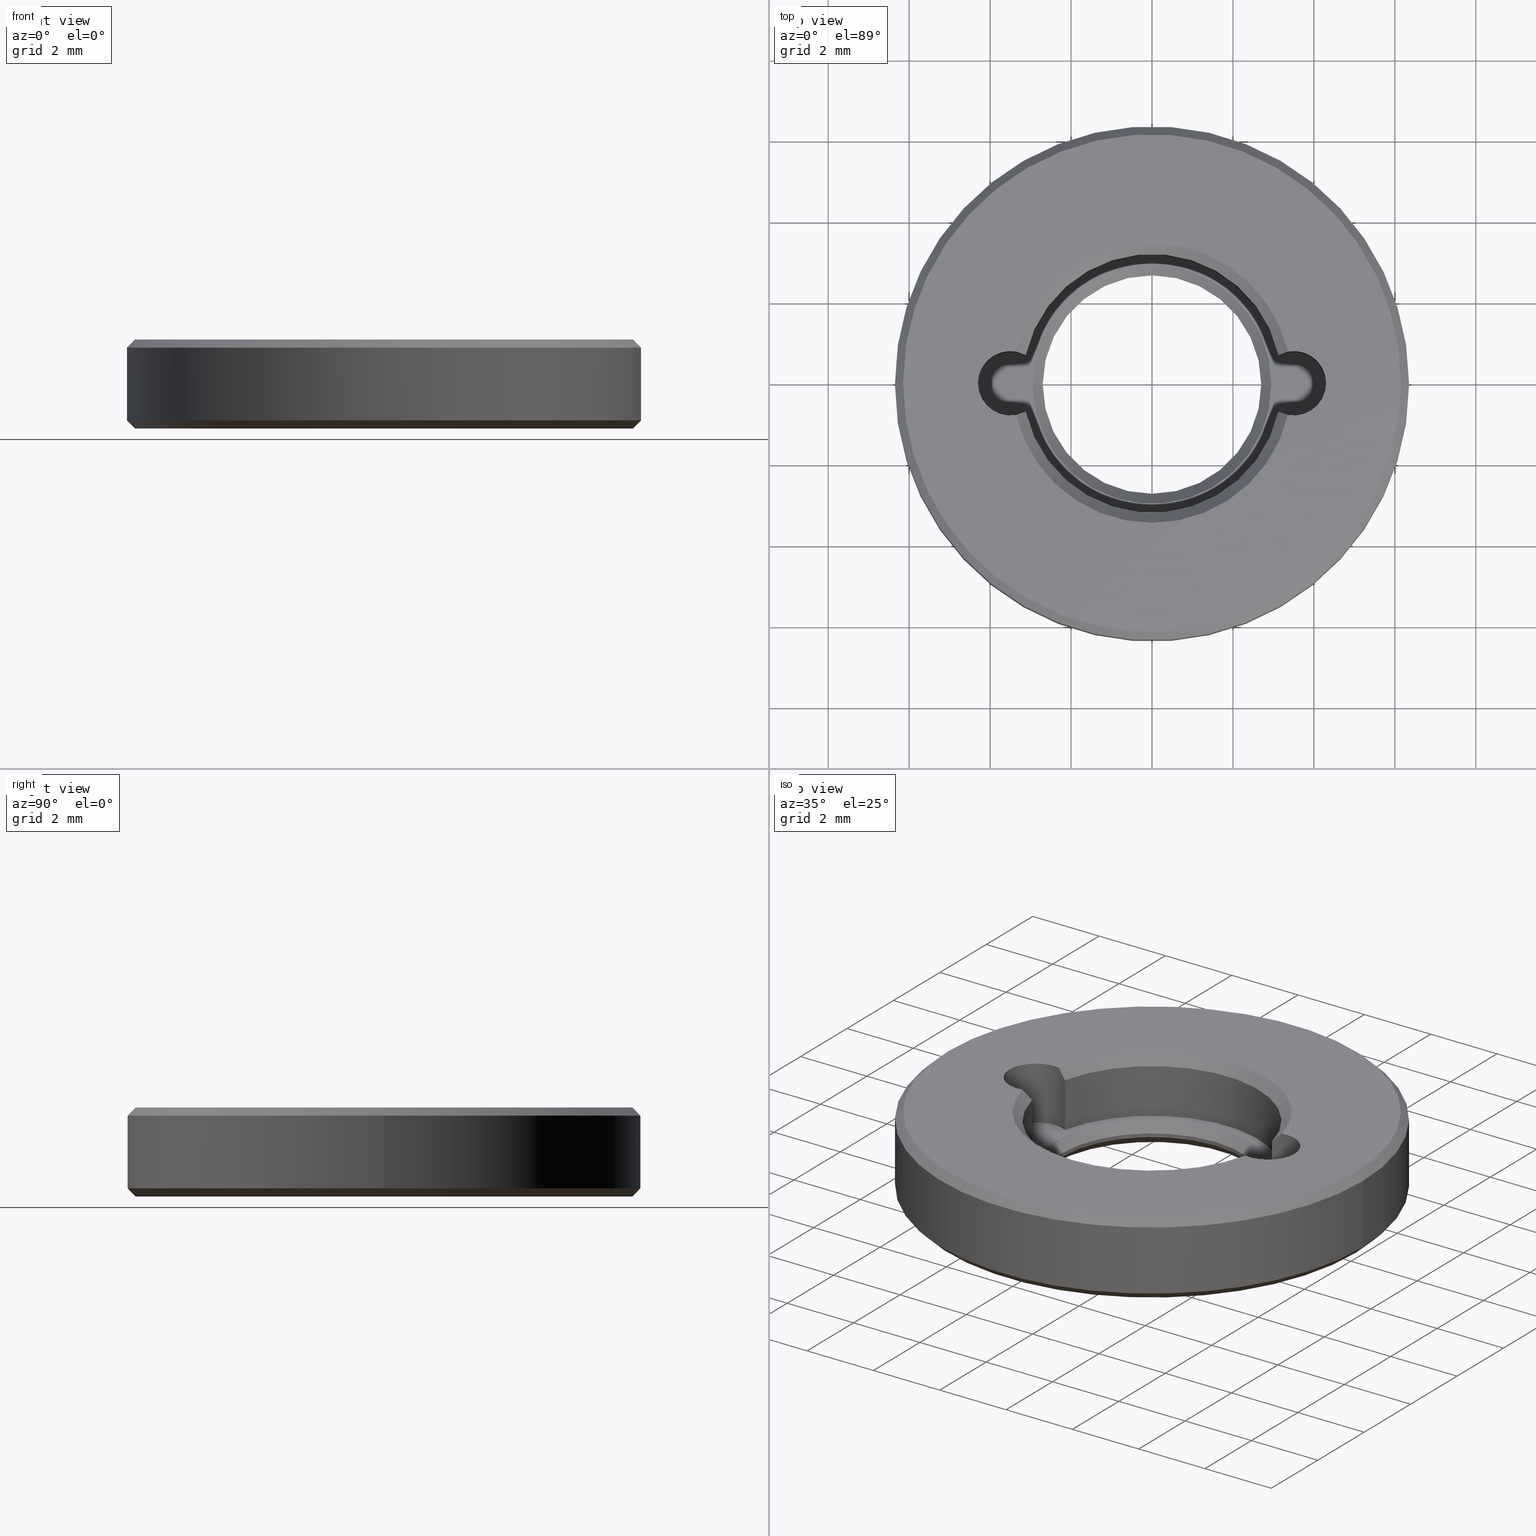
[diagram: canonical four-view strip — front | top / right | iso, engineering-drawing reading convention]
A machine part, canonical four-view strip (front | top / right | iso — engineering-drawing reading convention). The complete STEP part file that produces these views, byte-faithful:
ISO-10303-21;
HEADER;
FILE_DESCRIPTION (( 'STEP AP203' ),
    '1' );
FILE_NAME ('1.6.4.7-ZSJ-05-6.35.STEP',
    '2024-04-15T05:49:39',
    ( '' ),
    ( '' ),
    'SwSTEP 2.0',
    'SolidWorks 2021',
    '' );
FILE_SCHEMA (( 'CONFIG_CONTROL_DESIGN' ));
ENDSEC;

DATA;
#1 = LINE ( 'NONE', #384, #110 ) ;
#2 = CARTESIAN_POINT ( 'NONE',  ( 0.000000000000000000, 0.000000000000000000, 0.2500000000000002220 ) ) ;
#3 = EDGE_CURVE ( 'NONE', #61, #631, #259, .T. ) ;
#4 = DATE_AND_TIME ( #54, #622 ) ;
#5 = DIRECTION ( 'NONE',  ( -0.000000000000000000, -0.000000000000000000, 1.000000000000000000 ) ) ;
#6 = LOCAL_TIME ( 13, 49, 39.00000000000000000, #130 ) ;
#7 = ORIENTED_EDGE ( 'NONE', *, *, #155, .T. ) ;
#8 = DATE_AND_TIME ( #675, #6 ) ;
#9 = DIRECTION ( 'NONE',  ( 0.000000000000000000, 0.000000000000000000, 1.000000000000000000 ) ) ;
#10 = CYLINDRICAL_SURFACE ( 'NONE', #87, 2.700000000000000178 ) ;
#11 = APPROVAL_DATE_TIME ( #8, #230 ) ;
#12 = ORIENTED_EDGE ( 'NONE', *, *, #251, .T. ) ;
#13 = CARTESIAN_POINT ( 'NONE',  ( 0.000000000000000000, 0.000000000000000000, 0.3500000000000033085 ) ) ;
#14 = AXIS2_PLACEMENT_3D ( 'NONE', #295, #337, #555 ) ;
#15 = EDGE_CURVE ( 'NONE', #631, #602, #674, .T. ) ;
#16 = ORIENTED_EDGE ( 'NONE', *, *, #401, .F. ) ;
#17 = AXIS2_PLACEMENT_3D ( 'NONE', #395, #174, #76 ) ;
#18 = VECTOR ( 'NONE', #400, 1000.000000000000000 ) ;
#19 = EDGE_LOOP ( 'NONE', ( #374, #69 ) ) ;
#20 = DIRECTION ( 'NONE',  ( 0.000000000000000000, 0.000000000000000000, 1.000000000000000000 ) ) ;
#21 = ORIENTED_EDGE ( 'NONE', *, *, #630, .T. ) ;
#22 = DIRECTION ( 'NONE',  ( 1.000000000000000000, 0.000000000000000000, 0.000000000000000000 ) ) ;
#23 = EDGE_CURVE ( 'NONE', #570, #412, #679, .T. ) ;
#24 = ORIENTED_EDGE ( 'NONE', *, *, #545, .F. ) ;
#25 = CARTESIAN_POINT ( 'NONE',  ( 0.000000000000000000, 0.000000000000000000, 0.000000000000000000 ) ) ;
#26 = ORIENTED_EDGE ( 'NONE', *, *, #573, .F. ) ;
#27 = AXIS2_PLACEMENT_3D ( 'NONE', #255, #640, #263 ) ;
#28 = AXIS2_PLACEMENT_3D ( 'NONE', #414, #628, #138 ) ;
#29 = EDGE_CURVE ( 'NONE', #665, #344, #528, .T. ) ;
#30 = ORIENTED_EDGE ( 'NONE', *, *, #471, .F. ) ;
#31 = FACE_OUTER_BOUND ( 'NONE', #669, .T. ) ;
#32 = CARTESIAN_POINT ( 'NONE',  ( 3.500000000000000000, 4.286263797015736595E-16, 0.6000000000000003109 ) ) ;
#33 = VERTEX_POINT ( 'NONE', #567 ) ;
#34 = FACE_OUTER_BOUND ( 'NONE', #176, .T. ) ;
#35 = DIRECTION ( 'NONE',  ( -1.000000000000000000, 0.000000000000000000, 0.000000000000000000 ) ) ;
#36 = ORIENTED_EDGE ( 'NONE', *, *, #195, .T. ) ;
#37 = CARTESIAN_POINT ( 'NONE',  ( 2.700000000000000178, 0.000000000000000000, 0.2500000000000002220 ) ) ;
#38 = CARTESIAN_POINT ( 'NONE',  ( -3.358928571428574816, -0.7874635560080348595, 2.200000000000000178 ) ) ;
#39 = EDGE_CURVE ( 'NONE', #627, #196, #271, .T. ) ;
#40 = EDGE_LOOP ( 'NONE', ( #510, #140, #118, #426 ) ) ;
#41 = DIRECTION ( 'NONE',  ( -0.000000000000000000, -0.000000000000000000, -1.000000000000000000 ) ) ;
#42 = DIRECTION ( 'NONE',  ( 1.000000000000000000, 0.000000000000000000, 0.000000000000000000 ) ) ;
#43 = CC_DESIGN_PERSON_AND_ORGANIZATION_ASSIGNMENT ( #44, #386, ( #582 ) ) ;
#44 = PERSON_AND_ORGANIZATION ( #498, #248 ) ;
#45 = CARTESIAN_POINT ( 'NONE',  ( -3.121428571428571441, -0.7047578828714082810, 0.6000000000000003109 ) ) ;
#46 = EDGE_CURVE ( 'NONE', #631, #61, #321, .T. ) ;
#47 = DIRECTION ( 'NONE',  ( 1.000000000000000000, 0.000000000000000000, 0.000000000000000000 ) ) ;
#48 = APPLICATION_CONTEXT ( 'configuration controlled 3d designs of mechanical parts and assemblies' ) ;
#49 = AXIS2_PLACEMENT_3D ( 'NONE', #591, #439, #47 ) ;
#50 = DIRECTION ( 'NONE',  ( 0.7071067811865490160, 8.659560562354950115E-17, -0.7071067811865459074 ) ) ;
#51 = APPROVAL_ROLE ( '' ) ;
#52 = DIRECTION ( 'NONE',  ( 1.000000000000000000, 0.000000000000000000, -0.000000000000000000 ) ) ;
#53 = ADVANCED_FACE ( 'NONE', ( #91 ), #302, .T. ) ;
#54 = CALENDAR_DATE ( 2024, 15, 4 ) ;
#55 = DIRECTION ( 'NONE',  ( 1.000000000000000000, 0.000000000000000000, -0.000000000000000000 ) ) ;
#56 = AXIS2_PLACEMENT_3D ( 'NONE', #252, #422, #467 ) ;
#57 = ORIENTED_EDGE ( 'NONE', *, *, #683, .F. ) ;
#58 = DIRECTION ( 'NONE',  ( 1.000000000000000000, 0.000000000000000000, 0.000000000000000000 ) ) ;
#59 = AXIS2_PLACEMENT_3D ( 'NONE', #2, #220, #320 ) ;
#60 = VECTOR ( 'NONE', #522, 1000.000000000000000 ) ;
#61 = VERTEX_POINT ( 'NONE', #258 ) ;
#62 = ORIENTED_EDGE ( 'NONE', *, *, #704, .T. ) ;
#63 = DIRECTION ( 'NONE',  ( 0.000000000000000000, 0.000000000000000000, 1.000000000000000000 ) ) ;
#64 = CARTESIAN_POINT ( 'NONE',  ( 3.276081714236735998, -0.7726218221810703390, 2.115952463718425491 ) ) ;
#65 = EDGE_CURVE ( 'NONE', #186, #665, #418, .T. ) ;
#66 = CARTESIAN_POINT ( 'NONE',  ( 0.000000000000000000, 0.000000000000000000, 0.1999999999999987899 ) ) ;
#67 = APPROVAL_STATUS ( 'not_yet_approved' ) ;
#68 = PRODUCT_DEFINITION ( 'δ֪', '', #353, #325 ) ;
#69 = ORIENTED_EDGE ( 'NONE', *, *, #545, .T. ) ;
#70 = DIRECTION ( 'NONE',  ( -0.000000000000000000, -0.000000000000000000, -1.000000000000000000 ) ) ;
#71 = CIRCLE ( 'NONE', #407, 2.949999999999997957 ) ;
#72 = ORIENTED_EDGE ( 'NONE', *, *, #94, .T. ) ;
#73 = CIRCLE ( 'NONE', #121, 3.200000000000000178 ) ;
#74 = B_SPLINE_CURVE_WITH_KNOTS ( 'NONE', 3,
 ( #38, #430, #572, #99 ),
 .UNSPECIFIED., .F., .F.,
 ( 4, 4 ),
 ( 2.812734725205287172E-07, 0.0003548887725015042603 ),
 .UNSPECIFIED. ) ;
#75 = ORIENTED_EDGE ( 'NONE', *, *, #499, .T. ) ;
#76 = DIRECTION ( 'NONE',  ( 1.000000000000000000, 0.000000000000000000, 0.000000000000000000 ) ) ;
#77 = DIRECTION ( 'NONE',  ( 1.000000000000000000, 0.000000000000000000, 0.000000000000000000 ) ) ;
#78 = EDGE_CURVE ( 'NONE', #186, #521, #288, .T. ) ;
#79 = ORIENTED_EDGE ( 'NONE', *, *, #573, .T. ) ;
#80 = CYLINDRICAL_SURFACE ( 'NONE', #247, 0.8000000000000008216 ) ;
#81 = DIRECTION ( 'NONE',  ( 1.000000000000000000, 0.000000000000000000, 0.000000000000000000 ) ) ;
#82 = ADVANCED_FACE ( 'NONE', ( #633, #307 ), #317, .T. ) ;
#83 = ORIENTED_EDGE ( 'NONE', *, *, #23, .T. ) ;
#84 = CARTESIAN_POINT ( 'NONE',  ( 0.000000000000000000, 0.000000000000000000, 0.6000000000000000888 ) ) ;
#85 = CARTESIAN_POINT ( 'NONE',  ( 2.700000000000000178, 0.000000000000000000, 0.3500000000000033085 ) ) ;
#86 = AXIS2_PLACEMENT_3D ( 'NONE', #111, #225, #58 ) ;
#87 = AXIS2_PLACEMENT_3D ( 'NONE', #286, #677, #240 ) ;
#88 = AXIS2_PLACEMENT_3D ( 'NONE', #197, #644, #301 ) ;
#89 = ORIENTED_EDGE ( 'NONE', *, *, #410, .T. ) ;
#90 = FACE_OUTER_BOUND ( 'NONE', #102, .T. ) ;
#91 = FACE_OUTER_BOUND ( 'NONE', #611, .T. ) ;
#92 = EDGE_LOOP ( 'NONE', ( #664, #119, #406, #181 ) ) ;
#93 = CARTESIAN_POINT ( 'NONE',  ( 3.500000000000000000, 4.286263797015736595E-16, -1.662741699796954853 ) ) ;
#94 = EDGE_CURVE ( 'NONE', #534, #672, #74, .T. ) ;
#95 = DIRECTION ( 'NONE',  ( 1.000000000000000000, 0.000000000000000000, 0.000000000000000000 ) ) ;
#96 = VERTEX_POINT ( 'NONE', #198 ) ;
#97 = CARTESIAN_POINT ( 'NONE',  ( 3.121428571428571441, -0.7047578828714075039, 1.400000000000000133 ) ) ;
#98 = CC_DESIGN_PERSON_AND_ORGANIZATION_ASSIGNMENT ( #209, #223, ( #353 ) ) ;
#99 = CARTESIAN_POINT ( 'NONE',  ( -3.121428571428571441, -0.7047578828714082810, 1.949999999999999956 ) ) ;
#100 = AXIS2_PLACEMENT_3D ( 'NONE', #264, #684, #415 ) ;
#101 = AXIS2_PLACEMENT_3D ( 'NONE', #25, #686, #689 ) ;
#102 = EDGE_LOOP ( 'NONE', ( #16, #508, #275, #124 ) ) ;
#103 = APPROVAL_DATE_TIME ( #4, #162 ) ;
#104 = DIRECTION ( 'NONE',  ( 1.000000000000000000, 0.000000000000000000, 0.000000000000000000 ) ) ;
#105 = ADVANCED_FACE ( 'NONE', ( #204 ), #378, .F. ) ;
#106 = DIRECTION ( 'NONE',  ( 0.000000000000000000, 0.000000000000000000, 1.000000000000000000 ) ) ;
#107 = PERSON_AND_ORGANIZATION_ROLE ( 'classification_officer' ) ;
#108 = DIRECTION ( 'NONE',  ( 0.000000000000000000, 0.000000000000000000, 1.000000000000000000 ) ) ;
#109 = DIRECTION ( 'NONE',  ( 1.000000000000000000, 0.000000000000000000, 0.000000000000000000 ) ) ;
#110 = VECTOR ( 'NONE', #537, 1000.000000000000000 ) ;
#111 = CARTESIAN_POINT ( 'NONE',  ( 0.000000000000000000, 0.000000000000000000, 1.949999999999999956 ) ) ;
#112 = AXIS2_PLACEMENT_3D ( 'NONE', #84, #421, #519 ) ;
#113 = DATE_AND_TIME ( #490, #380 ) ;
#114 = ADVANCED_FACE ( 'NONE', ( #313 ), #475, .F. ) ;
#115 = CARTESIAN_POINT ( 'NONE',  ( 3.500000000000000000, 4.286263797015736595E-16, -1.662741699796954853 ) ) ;
#116 = EDGE_LOOP ( 'NONE', ( #253, #131 ) ) ;
#117 = DIRECTION ( 'NONE',  ( 0.000000000000000000, 0.000000000000000000, -1.000000000000000000 ) ) ;
#118 = ORIENTED_EDGE ( 'NONE', *, *, #145, .T. ) ;
#119 = ORIENTED_EDGE ( 'NONE', *, *, #15, .T. ) ;
#120 = DIRECTION ( 'NONE',  ( 0.000000000000000000, 0.000000000000000000, 1.000000000000000000 ) ) ;
#121 = AXIS2_PLACEMENT_3D ( 'NONE', #356, #20, #452 ) ;
#122 = CARTESIAN_POINT ( 'NONE',  ( -6.349999999999999645, 7.776507174585692163E-16, 0.1999999999999987899 ) ) ;
#123 = EDGE_CURVE ( 'NONE', #192, #96, #620, .T. ) ;
#124 = ORIENTED_EDGE ( 'NONE', *, *, #608, .T. ) ;
#125 = CARTESIAN_POINT ( 'NONE',  ( 0.000000000000000000, 0.000000000000000000, 2.200000000000000178 ) ) ;
#126 = ORIENTED_EDGE ( 'NONE', *, *, #513, .F. ) ;
#127 = ORIENTED_EDGE ( 'NONE', *, *, #3, .T. ) ;
#128 = DIRECTION ( 'NONE',  ( 1.000000000000000000, 0.000000000000000000, 0.000000000000000000 ) ) ;
#129 = ORIENTED_EDGE ( 'NONE', *, *, #29, .F. ) ;
#130 = COORDINATED_UNIVERSAL_TIME_OFFSET ( 8, 0, .AHEAD. ) ;
#131 = ORIENTED_EDGE ( 'NONE', *, *, #218, .T. ) ;
#132 = DIRECTION ( 'NONE',  ( -0.000000000000000000, -0.000000000000000000, 1.000000000000000000 ) ) ;
#133 = CIRCLE ( 'NONE', #634, 3.450000000000003286 ) ;
#134 = ORIENTED_EDGE ( 'NONE', *, *, #251, .F. ) ;
#135 = EDGE_LOOP ( 'NONE', ( #300, #79, #465, #334 ) ) ;
#136 = CARTESIAN_POINT ( 'NONE',  ( 0.000000000000000000, 0.000000000000000000, 0.1999999999999987899 ) ) ;
#137 = ORIENTED_EDGE ( 'NONE', *, *, #372, .F. ) ;
#138 = DIRECTION ( 'NONE',  ( 1.000000000000000000, 0.000000000000000000, 0.000000000000000000 ) ) ;
#139 = LINE ( 'NONE', #273, #574 ) ;
#140 = ORIENTED_EDGE ( 'NONE', *, *, #3, .F. ) ;
#141 = DIRECTION ( 'NONE',  ( -0.000000000000000000, -0.000000000000000000, 1.000000000000000000 ) ) ;
#142 = DIRECTION ( 'NONE',  ( -0.000000000000000000, -0.000000000000000000, -1.000000000000000000 ) ) ;
#143 = CIRCLE ( 'NONE', #304, 6.349999999999999645 ) ;
#144 = AXIS2_PLACEMENT_3D ( 'NONE', #481, #700, #435 ) ;
#145 = EDGE_CURVE ( 'NONE', #61, #408, #523, .T. ) ;
#146 = CONICAL_SURFACE ( 'NONE', #101, 2.949999999999999289, 0.7853981633974466137 ) ;
#147 = CC_DESIGN_APPROVAL ( #230, ( #201 ) ) ;
#148 = ORIENTED_EDGE ( 'NONE', *, *, #513, .T. ) ;
#149 = DIRECTION ( 'NONE',  ( -1.000000000000000000, 0.000000000000000000, 0.000000000000000000 ) ) ;
#150 = DIRECTION ( 'NONE',  ( 1.000000000000000000, 0.000000000000000000, 0.000000000000000000 ) ) ;
#151 = ORIENTED_EDGE ( 'NONE', *, *, #655, .F. ) ;
#152 = LINE ( 'NONE', #469, #158 ) ;
#153 = DIRECTION ( 'NONE',  ( 0.000000000000000000, 0.000000000000000000, 1.000000000000000000 ) ) ;
#154 = FACE_OUTER_BOUND ( 'NONE', #453, .T. ) ;
#155 = EDGE_CURVE ( 'NONE', #468, #404, #314, .T. ) ;
#156 = DIRECTION ( 'NONE',  ( 0.000000000000000000, 0.000000000000000000, 1.000000000000000000 ) ) ;
#157 = CONICAL_SURFACE ( 'NONE', #635, 2.700000000000000178, 0.7853981633974500554 ) ;
#158 = VECTOR ( 'NONE', #580, 1000.000000000000000 ) ;
#159 = COORDINATED_UNIVERSAL_TIME_OFFSET ( 8, 0, .AHEAD. ) ;
#160 = APPROVAL_PERSON_ORGANIZATION ( #324, #566, #51 ) ;
#161 = DIRECTION ( 'NONE',  ( -0.000000000000000000, -0.000000000000000000, 1.000000000000000000 ) ) ;
#162 = APPROVAL ( #600, 'δָ��' ) ;
#163 = SECURITY_CLASSIFICATION_LEVEL ( 'unclassified' ) ;
#164 = LINE ( 'NONE', #536, #188 ) ;
#165 = DIRECTION ( 'NONE',  ( -0.7071067811865487940, 8.659560562354950115E-17, 0.7071067811865463515 ) ) ;
#166 = AXIS2_PLACEMENT_3D ( 'NONE', #530, #142, #645 ) ;
#167 = EDGE_CURVE ( 'NONE', #521, #96, #222, .T. ) ;
#168 = PERSON_AND_ORGANIZATION ( #498, #248 ) ;
#169 = AXIS2_PLACEMENT_3D ( 'NONE', #309, #427, #149 ) ;
#170 = LINE ( 'NONE', #215, #540 ) ;
#171 = ORIENTED_EDGE ( 'NONE', *, *, #434, .T. ) ;
#172 = CARTESIAN_POINT ( 'NONE',  ( -2.700000000000000178, 3.306546357697853733E-16, 0.3500000000000033085 ) ) ;
#173 = VERTEX_POINT ( 'NONE', #85 ) ;
#174 = DIRECTION ( 'NONE',  ( 0.000000000000000000, 0.000000000000000000, 1.000000000000000000 ) ) ;
#175 = EDGE_CURVE ( 'NONE', #177, #33, #71, .T. ) ;
#176 = EDGE_LOOP ( 'NONE', ( #456, #281, #643, #233 ) ) ;
#177 = VERTEX_POINT ( 'NONE', #310 ) ;
#178 = DIRECTION ( 'NONE',  ( -0.000000000000000000, -0.000000000000000000, -1.000000000000000000 ) ) ;
#179 = ADVANCED_FACE ( 'NONE', ( #478 ), #157, .F. ) ;
#180 = CC_DESIGN_APPROVAL ( #162, ( #353 ) ) ;
#181 = ORIENTED_EDGE ( 'NONE', *, *, #145, .F. ) ;
#182 = CARTESIAN_POINT ( 'NONE',  ( -2.949999999999999289, 0.000000000000000000, 0.000000000000000000 ) ) ;
#183 = EDGE_CURVE ( 'NONE', #527, #404, #133, .T. ) ;
#184 = CARTESIAN_POINT ( 'NONE',  ( 0.000000000000000000, 0.000000000000000000, 2.200000000000000178 ) ) ;
#185 = CARTESIAN_POINT ( 'NONE',  ( 0.000000000000000000, 0.000000000000000000, 0.000000000000000000 ) ) ;
#186 = VERTEX_POINT ( 'NONE', #533 ) ;
#187 = CARTESIAN_POINT ( 'NONE',  ( 4.300000000000000711, 4.286263797015736595E-16, 2.200000000000000178 ) ) ;
#188 = VECTOR ( 'NONE', #165, 1000.000000000000000 ) ;
#189 = ORIENTED_EDGE ( 'NONE', *, *, #531, .T. ) ;
#190 = CARTESIAN_POINT ( 'NONE',  ( -6.150000000000000355, 7.654042494670957606E-16, 0.000000000000000000 ) ) ;
#191 = DIRECTION ( 'NONE',  ( 1.000000000000000000, 0.000000000000000000, -0.000000000000000000 ) ) ;
#192 = VERTEX_POINT ( 'NONE', #45 ) ;
#193 = DIRECTION ( 'NONE',  ( 0.7071067811865463515, 8.659560562354919300E-17, -0.7071067811865487940 ) ) ;
#194 = DIRECTION ( 'NONE',  ( 0.000000000000000000, 0.000000000000000000, 1.000000000000000000 ) ) ;
#195 = EDGE_CURVE ( 'NONE', #605, #657, #348, .T. ) ;
#196 = VERTEX_POINT ( 'NONE', #629 ) ;
#197 = CARTESIAN_POINT ( 'NONE',  ( 0.000000000000000000, 0.000000000000000000, 2.200000000000000178 ) ) ;
#198 = CARTESIAN_POINT ( 'NONE',  ( 3.121428571428571441, -0.7047578828714075039, 0.6000000000000003109 ) ) ;
#199 = AXIS2_PLACEMENT_3D ( 'NONE', #607, #241, #77 ) ;
#200 =( GEOMETRIC_REPRESENTATION_CONTEXT ( 3 ) GLOBAL_UNCERTAINTY_ASSIGNED_CONTEXT ( ( #538 ) ) GLOBAL_UNIT_ASSIGNED_CONTEXT ( ( #381, #219, #653 ) ) REPRESENTATION_CONTEXT ( 'NONE', 'WORKASPACE' ) );
#201 = SECURITY_CLASSIFICATION ( '', '', #163 ) ;
#202 = EDGE_LOOP ( 'NONE', ( #518, #284, #624, #129 ) ) ;
#203 = CARTESIAN_POINT ( 'NONE',  ( 3.121428571428571441, 0.7047578828714082810, 1.949999999999999956 ) ) ;
#204 = FACE_OUTER_BOUND ( 'NONE', #637, .T. ) ;
#205 = EDGE_CURVE ( 'NONE', #432, #648, #139, .T. ) ;
#206 = LINE ( 'NONE', #312, #553 ) ;
#207 = CARTESIAN_POINT ( 'NONE',  ( 0.000000000000000000, 0.000000000000000000, 2.200000000000000178 ) ) ;
#208 = EDGE_LOOP ( 'NONE', ( #676, #370, #151, #615, #293 ) ) ;
#209 = PERSON_AND_ORGANIZATION ( #498, #248 ) ;
#210 = PRODUCT_RELATED_PRODUCT_CATEGORY ( 'detail', '', ( #582 ) ) ;
#211 = CARTESIAN_POINT ( 'NONE',  ( -3.121428571428571441, 0.7047578828714076149, 1.949999999999999956 ) ) ;
#212 = VECTOR ( 'NONE', #649, 1000.000000000000000 ) ;
#213 = CIRCLE ( 'NONE', #59, 2.700000000000000178 ) ;
#214 = CARTESIAN_POINT ( 'NONE',  ( -3.500000000000000000, -4.286263797015736595E-16, 2.200000000000000178 ) ) ;
#215 = CARTESIAN_POINT ( 'NONE',  ( -2.700000000000000178, 3.306546357697853733E-16, 0.000000000000000000 ) ) ;
#216 = CARTESIAN_POINT ( 'NONE',  ( 3.121428571428571441, 0.7047578828714082810, 1.949999999999999956 ) ) ;
#217 = CARTESIAN_POINT ( 'NONE',  ( 0.000000000000000000, 0.000000000000000000, 0.1999999999999987899 ) ) ;
#218 = EDGE_CURVE ( 'NONE', #33, #177, #504, .T. ) ;
#219 =( NAMED_UNIT ( * ) PLANE_ANGLE_UNIT ( ) SI_UNIT ( $, .RADIAN. ) );
#220 = DIRECTION ( 'NONE',  ( -0.000000000000000000, -0.000000000000000000, -1.000000000000000000 ) ) ;
#221 = ADVANCED_FACE ( 'NONE', ( #661 ), #517, .T. ) ;
#222 = CIRCLE ( 'NONE', #27, 0.8000000000000008216 ) ;
#223 = PERSON_AND_ORGANIZATION_ROLE ( 'creator' ) ;
#224 = CIRCLE ( 'NONE', #621, 6.149999999999999467 ) ;
#225 = DIRECTION ( 'NONE',  ( 0.000000000000000000, 0.000000000000000000, 1.000000000000000000 ) ) ;
#226 = ORIENTED_EDGE ( 'NONE', *, *, #696, .T. ) ;
#227 = DATE_TIME_ROLE ( 'classification_date' ) ;
#228 = EDGE_CURVE ( 'NONE', #657, #173, #326, .T. ) ;
#229 = CARTESIAN_POINT ( 'NONE',  ( -3.358928571428574816, -0.7874635560080348595, 2.200000000000000178 ) ) ;
#230 = APPROVAL ( #67, 'δָ��' ) ;
#231 = ORIENTED_EDGE ( 'NONE', *, *, #65, .F. ) ;
#232 = CYLINDRICAL_SURFACE ( 'NONE', #279, 6.349999999999999645 ) ;
#233 = ORIENTED_EDGE ( 'NONE', *, *, #228, .F. ) ;
#234 = DIRECTION ( 'NONE',  ( 1.000000000000000000, 0.000000000000000000, 0.000000000000000000 ) ) ;
#235 = CIRCLE ( 'NONE', #692, 0.8000000000000008216 ) ;
#236 = VECTOR ( 'NONE', #584, 1000.000000000000000 ) ;
#237 = ORIENTED_EDGE ( 'NONE', *, *, #343, .F. ) ;
#238 = APPROVAL_PERSON_ORGANIZATION ( #243, #230, #501 ) ;
#239 = ORIENTED_EDGE ( 'NONE', *, *, #376, .F. ) ;
#240 = DIRECTION ( 'NONE',  ( 1.000000000000000000, 0.000000000000000000, 0.000000000000000000 ) ) ;
#241 = DIRECTION ( 'NONE',  ( -0.000000000000000000, -0.000000000000000000, -1.000000000000000000 ) ) ;
#242 = EDGE_CURVE ( 'NONE', #344, #527, #431, .T. ) ;
#243 = PERSON_AND_ORGANIZATION ( #498, #248 ) ;
#244 = CARTESIAN_POINT ( 'NONE',  ( 0.000000000000000000, 0.000000000000000000, 0.3500000000000033085 ) ) ;
#245 = ORIENTED_EDGE ( 'NONE', *, *, #205, .T. ) ;
#246 = LINE ( 'NONE', #97, #542 ) ;
#247 = AXIS2_PLACEMENT_3D ( 'NONE', #93, #141, #297 ) ;
#248 = ORGANIZATION ( 'δָ��', 'δָ��', '' ) ;
#249 = ORIENTED_EDGE ( 'NONE', *, *, #123, .T. ) ;
#250 = CARTESIAN_POINT ( 'NONE',  ( -2.700000000000000178, 3.306546357697853733E-16, 0.2500000000000002220 ) ) ;
#251 = EDGE_CURVE ( 'NONE', #339, #33, #164, .T. ) ;
#252 = CARTESIAN_POINT ( 'NONE',  ( 0.000000000000000000, 0.000000000000000000, 0.6000000000000000888 ) ) ;
#253 = ORIENTED_EDGE ( 'NONE', *, *, #175, .T. ) ;
#254 = CYLINDRICAL_SURFACE ( 'NONE', #423, 2.700000000000000178 ) ;
#255 = CARTESIAN_POINT ( 'NONE',  ( 3.500000000000000000, 4.286263797015736595E-16, 0.6000000000000003109 ) ) ;
#256 = ORIENTED_EDGE ( 'NONE', *, *, #195, .F. ) ;
#257 = CARTESIAN_POINT ( 'NONE',  ( 0.000000000000000000, 0.000000000000000000, 0.000000000000000000 ) ) ;
#258 = CARTESIAN_POINT ( 'NONE',  ( 6.150000000000000355, 0.000000000000000000, 0.000000000000000000 ) ) ;
#259 = CIRCLE ( 'NONE', #199, 6.150000000000000355 ) ;
#260 = EDGE_CURVE ( 'NONE', #454, #602, #391, .T. ) ;
#261 = ORIENTED_EDGE ( 'NONE', *, *, #94, .F. ) ;
#262 = DIRECTION ( 'NONE',  ( -1.000000000000000000, 0.000000000000000000, 0.000000000000000000 ) ) ;
#263 = DIRECTION ( 'NONE',  ( 1.000000000000000000, 0.000000000000000000, 0.000000000000000000 ) ) ;
#264 = CARTESIAN_POINT ( 'NONE',  ( 0.000000000000000000, 0.000000000000000000, 0.2500000000000002220 ) ) ;
#265 = PRODUCT_DEFINITION_SHAPE ( 'NONE', 'NONE',  #68 ) ;
#266 = PERSON_AND_ORGANIZATION_ROLE ( 'creator' ) ;
#267 = DIRECTION ( 'NONE',  ( -0.000000000000000000, -0.000000000000000000, 1.000000000000000000 ) ) ;
#268 = CIRCLE ( 'NONE', #49, 6.349999999999999645 ) ;
#269 = ADVANCED_FACE ( 'NONE', ( #603 ), #397, .F. ) ;
#270 = CARTESIAN_POINT ( 'NONE',  ( 0.000000000000000000, 0.000000000000000000, 0.6000000000000000888 ) ) ;
#271 = B_SPLINE_CURVE_WITH_KNOTS ( 'NONE', 3,
 ( #516, #619, #64, #512 ),
 .UNSPECIFIED., .F., .F.,
 ( 4, 4 ),
 ( 2.863821279594674527E-07, 0.0003548938811569430979 ),
 .UNSPECIFIED. ) ;
#272 = APPROVAL_DATE_TIME ( #113, #566 ) ;
#273 = CARTESIAN_POINT ( 'NONE',  ( 6.149999999999999467, 7.531577814756219106E-16, 2.200000000000000178 ) ) ;
#274 = MANIFOLD_SOLID_BREP ( '����(Բ��)1', #587 ) ;
#275 = ORIENTED_EDGE ( 'NONE', *, *, #29, .T. ) ;
#276 = PERSON_AND_ORGANIZATION ( #498, #248 ) ;
#277 = DIRECTION ( 'NONE',  ( 1.000000000000000000, 0.000000000000000000, 0.000000000000000000 ) ) ;
#278 = ADVANCED_FACE ( 'NONE', ( #483 ), #549, .F. ) ;
#279 = AXIS2_PLACEMENT_3D ( 'NONE', #663, #70, #335 ) ;
#280 = CIRCLE ( 'NONE', #411, 6.349999999999999645 ) ;
#281 = ORIENTED_EDGE ( 'NONE', *, *, #299, .T. ) ;
#282 = CARTESIAN_POINT ( 'NONE',  ( -6.349999999999999645, 0.000000000000000000, 2.000000000000000444 ) ) ;
#283 = LOCAL_TIME ( 13, 49, 39.00000000000000000, #495 ) ;
#284 = ORIENTED_EDGE ( 'NONE', *, *, #183, .F. ) ;
#285 = CC_DESIGN_DATE_AND_TIME_ASSIGNMENT ( #532, #389, ( #68 ) ) ;
#286 = CARTESIAN_POINT ( 'NONE',  ( 0.000000000000000000, 0.000000000000000000, 0.000000000000000000 ) ) ;
#287 = DIRECTION ( 'NONE',  ( 1.000000000000000000, 0.000000000000000000, 0.000000000000000000 ) ) ;
#288 = CIRCLE ( 'NONE', #701, 0.8000000000000008216 ) ;
#289 = EDGE_LOOP ( 'NONE', ( #83, #559 ) ) ;
#290 = DIRECTION ( 'NONE',  ( 1.000000000000000000, 0.000000000000000000, 0.000000000000000000 ) ) ;
#291 = EDGE_CURVE ( 'NONE', #454, #648, #268, .T. ) ;
#292 = ORIENTED_EDGE ( 'NONE', *, *, #228, .T. ) ;
#293 = ORIENTED_EDGE ( 'NONE', *, *, #616, .T. ) ;
#294 = CARTESIAN_POINT ( 'NONE',  ( 3.358928571428574816, 0.7874635560080348595, 2.200000000000000178 ) ) ;
#295 = CARTESIAN_POINT ( 'NONE',  ( 0.000000000000000000, 0.000000000000000000, 1.949999999999999956 ) ) ;
#296 = ORIENTED_EDGE ( 'NONE', *, *, #616, .F. ) ;
#297 = DIRECTION ( 'NONE',  ( 1.000000000000000000, 0.000000000000000000, 0.000000000000000000 ) ) ;
#298 = CARTESIAN_POINT ( 'NONE',  ( 0.000000000000000000, 0.000000000000000000, 0.000000000000000000 ) ) ;
#299 = EDGE_CURVE ( 'NONE', #605, #339, #170, .T. ) ;
#300 = ORIENTED_EDGE ( 'NONE', *, *, #291, .T. ) ;
#301 = DIRECTION ( 'NONE',  ( -1.000000000000000000, 0.000000000000000000, 0.000000000000000000 ) ) ;
#302 = CONICAL_SURFACE ( 'NONE', #473, 6.149999999999999467, 0.7853981633974503884 ) ;
#303 = CARTESIAN_POINT ( 'NONE',  ( 6.349999999999999645, 0.000000000000000000, 0.1999999999999987899 ) ) ;
#304 = AXIS2_PLACEMENT_3D ( 'NONE', #485, #117, #328 ) ;
#305 = EDGE_LOOP ( 'NONE', ( #367, #688, #7, #226, #231 ) ) ;
#306 = LINE ( 'NONE', #515, #60 ) ;
#307 = FACE_OUTER_BOUND ( 'NONE', #19, .T. ) ;
#308 = ORIENTED_EDGE ( 'NONE', *, *, #655, .T. ) ;
#309 = CARTESIAN_POINT ( 'NONE',  ( 3.500000000000000000, 4.286263797015736595E-16, 2.200000000000000178 ) ) ;
#310 = CARTESIAN_POINT ( 'NONE',  ( 2.949999999999997957, 0.000000000000000000, 0.6000000000000000888 ) ) ;
#311 = EDGE_LOOP ( 'NONE', ( #296, #171, #363, #399, #419 ) ) ;
#312 = CARTESIAN_POINT ( 'NONE',  ( 2.949999999999999289, 3.612708057484691604E-16, 0.000000000000000000 ) ) ;
#313 = FACE_OUTER_BOUND ( 'NONE', #558, .T. ) ;
#314 = CIRCLE ( 'NONE', #460, 0.8000000000000008216 ) ;
#315 = CC_DESIGN_PERSON_AND_ORGANIZATION_ASSIGNMENT ( #445, #650, ( #353 ) ) ;
#316 = ORIENTED_EDGE ( 'NONE', *, *, #260, .T. ) ;
#317 = PLANE ( 'NONE',  #420 ) ;
#318 = CARTESIAN_POINT ( 'NONE',  ( -3.196902438309962236, 0.7452998197543061476, 2.032549541901520040 ) ) ;
#319 = ADVANCED_FACE ( 'NONE', ( #654, #651 ), #387, .T. ) ;
#320 = DIRECTION ( 'NONE',  ( 1.000000000000000000, 0.000000000000000000, 0.000000000000000000 ) ) ;
#321 = CIRCLE ( 'NONE', #442, 6.150000000000000355 ) ;
#322 = CIRCLE ( 'NONE', #17, 2.949999999999999289 ) ;
#323 = AXIS2_PLACEMENT_3D ( 'NONE', #184, #403, #22 ) ;
#324 = PERSON_AND_ORGANIZATION ( #498, #248 ) ;
#325 = DESIGN_CONTEXT ( 'detailed design', #486, 'design' ) ;
#326 = LINE ( 'NONE', #593, #492 ) ;
#327 = APPROVAL_ROLE ( '' ) ;
#328 = DIRECTION ( 'NONE',  ( 1.000000000000000000, 0.000000000000000000, 0.000000000000000000 ) ) ;
#329 = EDGE_CURVE ( 'NONE', #648, #454, #143, .T. ) ;
#330 = DIRECTION ( 'NONE',  ( 0.7071067811865487940, 0.000000000000000000, 0.7071067811865463515 ) ) ;
#331 = ORIENTED_EDGE ( 'NONE', *, *, #78, .F. ) ;
#332 = VECTOR ( 'NONE', #586, 1000.000000000000000 ) ;
#333 = CIRCLE ( 'NONE', #436, 0.8000000000000008216 ) ;
#334 = ORIENTED_EDGE ( 'NONE', *, *, #260, .F. ) ;
#335 = DIRECTION ( 'NONE',  ( -1.000000000000000000, 0.000000000000000000, 0.000000000000000000 ) ) ;
#336 = CC_DESIGN_APPROVAL ( #566, ( #68 ) ) ;
#337 = DIRECTION ( 'NONE',  ( 0.000000000000000000, 0.000000000000000000, 1.000000000000000000 ) ) ;
#338 = CALENDAR_DATE ( 2024, 15, 4 ) ;
#339 = VERTEX_POINT ( 'NONE', #172 ) ;
#340 = CARTESIAN_POINT ( 'NONE',  ( 6.349999999999999645, 7.776507174585692163E-16, 0.1999999999999987899 ) ) ;
#341 = ORIENTED_EDGE ( 'NONE', *, *, #683, .T. ) ;
#342 = SHAPE_DEFINITION_REPRESENTATION ( #265, #347 ) ;
#343 = EDGE_CURVE ( 'NONE', #657, #605, #213, .T. ) ;
#344 = VERTEX_POINT ( 'NONE', #441 ) ;
#345 = DIRECTION ( 'NONE',  ( 1.000000000000000000, 0.000000000000000000, 0.000000000000000000 ) ) ;
#346 = ORIENTED_EDGE ( 'NONE', *, *, #123, .F. ) ;
#347 = ADVANCED_BREP_SHAPE_REPRESENTATION ( '1.6.4.7-ZSJ-05-6.35', ( #274, #577 ), #200 ) ;
#348 = CIRCLE ( 'NONE', #100, 2.700000000000000178 ) ;
#349 = CC_DESIGN_PERSON_AND_ORGANIZATION_ASSIGNMENT ( #592, #107, ( #201 ) ) ;
#350 = ORIENTED_EDGE ( 'NONE', *, *, #46, .T. ) ;
#351 = LINE ( 'NONE', #666, #18 ) ;
#352 = CIRCLE ( 'NONE', #476, 3.200000000000000178 ) ;
#353 = PRODUCT_DEFINITION_FORMATION_WITH_SPECIFIED_SOURCE ( '�κ�', '', #582, .NOT_KNOWN. ) ;
#354 = VERTEX_POINT ( 'NONE', #539 ) ;
#355 = ORIENTED_EDGE ( 'NONE', *, *, #410, .F. ) ;
#356 = CARTESIAN_POINT ( 'NONE',  ( 0.000000000000000000, 0.000000000000000000, 0.6000000000000000888 ) ) ;
#357 = DIRECTION ( 'NONE',  ( 0.000000000000000000, 0.000000000000000000, 1.000000000000000000 ) ) ;
#358 = ADVANCED_FACE ( 'NONE', ( #656, #548 ), #382, .F. ) ;
#359 = ORIENTED_EDGE ( 'NONE', *, *, #630, .F. ) ;
#360 = CARTESIAN_POINT ( 'NONE',  ( -3.121428571428571441, -0.7047578828714082810, 1.949999999999999956 ) ) ;
#361 = CARTESIAN_POINT ( 'NONE',  ( 3.121428571428571441, 0.7047578828714082810, 1.400000000000000133 ) ) ;
#362 = CC_DESIGN_PERSON_AND_ORGANIZATION_ASSIGNMENT ( #168, #266, ( #68 ) ) ;
#363 = ORIENTED_EDGE ( 'NONE', *, *, #704, .F. ) ;
#364 = FACE_OUTER_BOUND ( 'NONE', #667, .T. ) ;
#365 = AXIS2_PLACEMENT_3D ( 'NONE', #366, #590, #578 ) ;
#366 = CARTESIAN_POINT ( 'NONE',  ( 0.000000000000000000, 0.000000000000000000, 0.6000000000000000888 ) ) ;
#367 = ORIENTED_EDGE ( 'NONE', *, *, #78, .T. ) ;
#368 = CYLINDRICAL_SURFACE ( 'NONE', #563, 6.349999999999999645 ) ;
#369 = CARTESIAN_POINT ( 'NONE',  ( 0.000000000000000000, 0.000000000000000000, 2.200000000000000178 ) ) ;
#370 = ORIENTED_EDGE ( 'NONE', *, *, #167, .T. ) ;
#371 = DIRECTION ( 'NONE',  ( 1.000000000000000000, 0.000000000000000000, 0.000000000000000000 ) ) ;
#372 = EDGE_CURVE ( 'NONE', #173, #177, #446, .T. ) ;
#373 = DIRECTION ( 'NONE',  ( -1.000000000000000000, 0.000000000000000000, 0.000000000000000000 ) ) ;
#374 = ORIENTED_EDGE ( 'NONE', *, *, #393, .T. ) ;
#375 = FACE_OUTER_BOUND ( 'NONE', #678, .T. ) ;
#376 = EDGE_CURVE ( 'NONE', #173, #339, #562, .T. ) ;
#377 = DIRECTION ( 'NONE',  ( -0.000000000000000000, -0.000000000000000000, -1.000000000000000000 ) ) ;
#378 = CONICAL_SURFACE ( 'NONE', #166, 2.949999999999999289, 0.7853981633974466137 ) ;
#379 = AXIS2_PLACEMENT_3D ( 'NONE', #529, #638, #371 ) ;
#380 = LOCAL_TIME ( 13, 49, 39.00000000000000000, #159 ) ;
#381 =( LENGTH_UNIT ( ) NAMED_UNIT ( * ) SI_UNIT ( .MILLI., .METRE. ) );
#382 = PLANE ( 'NONE',  #589 ) ;
#383 = ADVANCED_FACE ( 'NONE', ( #614 ), #232, .T. ) ;
#384 = CARTESIAN_POINT ( 'NONE',  ( -3.121428571428571441, -0.7047578828714082810, 1.400000000000000133 ) ) ;
#385 = CARTESIAN_POINT ( 'NONE',  ( -6.349999999999999645, 0.000000000000000000, 2.200000000000000178 ) ) ;
#386 = PERSON_AND_ORGANIZATION_ROLE ( 'design_owner' ) ;
#387 = PLANE ( 'NONE',  #450 ) ;
#388 = AXIS2_PLACEMENT_3D ( 'NONE', #185, #357, #81 ) ;
#389 = DATE_TIME_ROLE ( 'creation_date' ) ;
#390 = EDGE_CURVE ( 'NONE', #339, #173, #461, .T. ) ;
#391 = LINE ( 'NONE', #385, #212 ) ;
#392 = ORIENTED_EDGE ( 'NONE', *, *, #205, .F. ) ;
#393 = EDGE_CURVE ( 'NONE', #354, #432, #541, .T. ) ;
#394 = DIRECTION ( 'NONE',  ( -0.000000000000000000, -0.000000000000000000, -1.000000000000000000 ) ) ;
#395 = CARTESIAN_POINT ( 'NONE',  ( 0.000000000000000000, 0.000000000000000000, 0.000000000000000000 ) ) ;
#396 = ORIENTED_EDGE ( 'NONE', *, *, #167, .F. ) ;
#397 = CONICAL_SURFACE ( 'NONE', #86, 3.200000000000000178, 0.7853981633974543852 ) ;
#398 = CONICAL_SURFACE ( 'NONE', #424, 2.700000000000000178, 0.7853981633974500554 ) ;
#399 = ORIENTED_EDGE ( 'NONE', *, *, #183, .T. ) ;
#400 = DIRECTION ( 'NONE',  ( -0.7071067811865490160, 0.000000000000000000, -0.7071067811865459074 ) ) ;
#401 = EDGE_CURVE ( 'NONE', #186, #681, #73, .T. ) ;
#402 = ORIENTED_EDGE ( 'NONE', *, *, #376, .T. ) ;
#403 = DIRECTION ( 'NONE',  ( -0.000000000000000000, -0.000000000000000000, -1.000000000000000000 ) ) ;
#404 = VERTEX_POINT ( 'NONE', #294 ) ;
#405 = DIRECTION ( 'NONE',  ( -0.7071067811865463515, 0.000000000000000000, -0.7071067811865487940 ) ) ;
#406 = ORIENTED_EDGE ( 'NONE', *, *, #509, .F. ) ;
#407 = AXIS2_PLACEMENT_3D ( 'NONE', #581, #520, #95 ) ;
#408 = VERTEX_POINT ( 'NONE', #340 ) ;
#409 = FACE_OUTER_BOUND ( 'NONE', #685, .T. ) ;
#410 = EDGE_CURVE ( 'NONE', #192, #681, #235, .T. ) ;
#411 = AXIS2_PLACEMENT_3D ( 'NONE', #136, #132, #560 ) ;
#412 = VERTEX_POINT ( 'NONE', #511 ) ;
#413 = ORIENTED_EDGE ( 'NONE', *, *, #372, .T. ) ;
#414 = CARTESIAN_POINT ( 'NONE',  ( 0.000000000000000000, 0.000000000000000000, 0.1999999999999987899 ) ) ;
#415 = DIRECTION ( 'NONE',  ( 1.000000000000000000, 0.000000000000000000, 0.000000000000000000 ) ) ;
#416 = ORIENTED_EDGE ( 'NONE', *, *, #23, .F. ) ;
#417 = FACE_OUTER_BOUND ( 'NONE', #305, .T. ) ;
#418 = LINE ( 'NONE', #361, #332 ) ;
#419 = ORIENTED_EDGE ( 'NONE', *, *, #155, .F. ) ;
#420 = AXIS2_PLACEMENT_3D ( 'NONE', #369, #194, #191 ) ;
#421 = DIRECTION ( 'NONE',  ( -0.000000000000000000, -0.000000000000000000, 1.000000000000000000 ) ) ;
#422 = DIRECTION ( 'NONE',  ( 0.000000000000000000, 0.000000000000000000, 1.000000000000000000 ) ) ;
#423 = AXIS2_PLACEMENT_3D ( 'NONE', #257, #474, #694 ) ;
#424 = AXIS2_PLACEMENT_3D ( 'NONE', #244, #449, #128 ) ;
#425 = EDGE_CURVE ( 'NONE', #605, #570, #569, .T. ) ;
#426 = ORIENTED_EDGE ( 'NONE', *, *, #499, .F. ) ;
#427 = DIRECTION ( 'NONE',  ( 0.000000000000000000, 0.000000000000000000, 1.000000000000000000 ) ) ;
#428 = CARTESIAN_POINT ( 'NONE',  ( 0.000000000000000000, 0.000000000000000000, 0.3500000000000033085 ) ) ;
#429 = CARTESIAN_POINT ( 'NONE',  ( -2.949999999999999289, 0.000000000000000000, 0.000000000000000000 ) ) ;
#430 = CARTESIAN_POINT ( 'NONE',  ( -3.276081714236735998, -0.7726218221810712272, 2.115952463718425491 ) ) ;
#431 = B_SPLINE_CURVE_WITH_KNOTS ( 'NONE', 3,
 ( #211, #318, #705, #601 ),
 .UNSPECIFIED., .F., .F.,
 ( 4, 4 ),
 ( 2.863821279594674527E-07, 0.0003548938811569430979 ),
 .UNSPECIFIED. ) ;
#432 = VERTEX_POINT ( 'NONE', #673 ) ;
#433 = DIRECTION ( 'NONE',  ( 0.000000000000000000, 0.000000000000000000, 1.000000000000000000 ) ) ;
#434 = EDGE_CURVE ( 'NONE', #196, #534, #636, .T. ) ;
#435 = DIRECTION ( 'NONE',  ( 1.000000000000000000, 0.000000000000000000, 0.000000000000000000 ) ) ;
#436 = AXIS2_PLACEMENT_3D ( 'NONE', #214, #433, #658 ) ;
#437 = CALENDAR_DATE ( 2024, 15, 4 ) ;
#438 = DIRECTION ( 'NONE',  ( -0.000000000000000000, -0.000000000000000000, 1.000000000000000000 ) ) ;
#439 = DIRECTION ( 'NONE',  ( 0.000000000000000000, 0.000000000000000000, -1.000000000000000000 ) ) ;
#440 = APPLICATION_PROTOCOL_DEFINITION ( 'international standard', 'config_control_design', 1994, #48 ) ;
#441 = CARTESIAN_POINT ( 'NONE',  ( -3.121428571428571441, 0.7047578828714076149, 1.949999999999999956 ) ) ;
#442 = AXIS2_PLACEMENT_3D ( 'NONE', #298, #526, #42 ) ;
#443 = CIRCLE ( 'NONE', #169, 0.8000000000000008216 ) ;
#444 = CC_DESIGN_DATE_AND_TIME_ASSIGNMENT ( #612, #227, ( #201 ) ) ;
#445 = PERSON_AND_ORGANIZATION ( #498, #248 ) ;
#446 = LINE ( 'NONE', #491, #493 ) ;
#447 = CARTESIAN_POINT ( 'NONE',  ( 0.000000000000000000, 0.000000000000000000, 2.200000000000000178 ) ) ;
#448 = EDGE_LOOP ( 'NONE', ( #134, #239, #413, #494 ) ) ;
#449 = DIRECTION ( 'NONE',  ( 0.000000000000000000, 0.000000000000000000, 1.000000000000000000 ) ) ;
#450 = AXIS2_PLACEMENT_3D ( 'NONE', #270, #108, #52 ) ;
#451 = AXIS2_PLACEMENT_3D ( 'NONE', #497, #455, #345 ) ;
#452 = DIRECTION ( 'NONE',  ( 1.000000000000000000, 0.000000000000000000, 0.000000000000000000 ) ) ;
#453 = EDGE_LOOP ( 'NONE', ( #237, #21, #416, #568 ) ) ;
#454 = VERTEX_POINT ( 'NONE', #282 ) ;
#455 = DIRECTION ( 'NONE',  ( -0.000000000000000000, -0.000000000000000000, 1.000000000000000000 ) ) ;
#456 = ORIENTED_EDGE ( 'NONE', *, *, #343, .T. ) ;
#457 = ADVANCED_FACE ( 'NONE', ( #610 ), #10, .F. ) ;
#458 = ORIENTED_EDGE ( 'NONE', *, *, #299, .F. ) ;
#459 = CARTESIAN_POINT ( 'NONE',  ( -3.500000000000000000, -4.286263797015736595E-16, 0.6000000000000003109 ) ) ;
#460 = AXIS2_PLACEMENT_3D ( 'NONE', #647, #156, #35 ) ;
#461 = CIRCLE ( 'NONE', #550, 2.700000000000000178 ) ;
#462 = ORIENTED_EDGE ( 'NONE', *, *, #390, .F. ) ;
#463 = FACE_OUTER_BOUND ( 'NONE', #40, .T. ) ;
#464 = CIRCLE ( 'NONE', #599, 6.349999999999999645 ) ;
#465 = ORIENTED_EDGE ( 'NONE', *, *, #509, .T. ) ;
#466 = CARTESIAN_POINT ( 'NONE',  ( -3.121428571428571441, 0.7047578828714075039, 1.400000000000000133 ) ) ;
#467 = DIRECTION ( 'NONE',  ( 1.000000000000000000, 0.000000000000000000, 0.000000000000000000 ) ) ;
#468 = VERTEX_POINT ( 'NONE', #187 ) ;
#469 = CARTESIAN_POINT ( 'NONE',  ( 6.349999999999999645, 7.776507174585692163E-16, 2.200000000000000178 ) ) ;
#470 = DIRECTION ( 'NONE',  ( 0.000000000000000000, 0.000000000000000000, -1.000000000000000000 ) ) ;
#471 = EDGE_CURVE ( 'NONE', #412, #570, #322, .T. ) ;
#472 = ORIENTED_EDGE ( 'NONE', *, *, #39, .F. ) ;
#473 = AXIS2_PLACEMENT_3D ( 'NONE', #687, #470, #373 ) ;
#474 = DIRECTION ( 'NONE',  ( -0.000000000000000000, -0.000000000000000000, 1.000000000000000000 ) ) ;
#475 = CYLINDRICAL_SURFACE ( 'NONE', #365, 3.200000000000000178 ) ;
#476 = AXIS2_PLACEMENT_3D ( 'NONE', #565, #9, #290 ) ;
#477 = LINE ( 'NONE', #466, #236 ) ;
#478 = FACE_OUTER_BOUND ( 'NONE', #693, .T. ) ;
#479 = ADVANCED_FACE ( 'NONE', ( #670 ), #398, .F. ) ;
#480 = COORDINATED_UNIVERSAL_TIME_OFFSET ( 8, 0, .AHEAD. ) ;
#481 = CARTESIAN_POINT ( 'NONE',  ( 0.000000000000000000, 0.000000000000000000, 0.3500000000000033085 ) ) ;
#482 = COORDINATED_UNIVERSAL_TIME_OFFSET ( 8, 0, .AHEAD. ) ;
#483 = FACE_OUTER_BOUND ( 'NONE', #208, .T. ) ;
#484 = AXIS2_PLACEMENT_3D ( 'NONE', #488, #394, #277 ) ;
#485 = CARTESIAN_POINT ( 'NONE',  ( 0.000000000000000000, 0.000000000000000000, 2.000000000000000444 ) ) ;
#486 = APPLICATION_CONTEXT ( 'configuration controlled 3d designs of mechanical parts and assemblies' ) ;
#487 = DIRECTION ( 'NONE',  ( 0.000000000000000000, 0.000000000000000000, 1.000000000000000000 ) ) ;
#488 = CARTESIAN_POINT ( 'NONE',  ( 0.000000000000000000, 0.000000000000000000, 0.6000000000000000888 ) ) ;
#489 = ADVANCED_FACE ( 'NONE', ( #409 ), #500, .F. ) ;
#490 = CALENDAR_DATE ( 2024, 15, 4 ) ;
#491 = CARTESIAN_POINT ( 'NONE',  ( 2.700000000000000178, 0.000000000000000000, 0.3500000000000033085 ) ) ;
#492 = VECTOR ( 'NONE', #161, 1000.000000000000000 ) ;
#493 = VECTOR ( 'NONE', #330, 1000.000000000000000 ) ;
#494 = ORIENTED_EDGE ( 'NONE', *, *, #218, .F. ) ;
#495 = COORDINATED_UNIVERSAL_TIME_OFFSET ( 8, 0, .AHEAD. ) ;
#496 = EDGE_LOOP ( 'NONE', ( #127, #350 ) ) ;
#497 = CARTESIAN_POINT ( 'NONE',  ( -3.500000000000000000, -4.286263797015736595E-16, -1.662741699796954853 ) ) ;
#498 = PERSON ( 'δָ��', 'δָ��', 'δָ��', ('δָ��'), ('δָ��'), ('δָ��') ) ;
#499 = EDGE_CURVE ( 'NONE', #602, #408, #464, .T. ) ;
#500 = CYLINDRICAL_SURFACE ( 'NONE', #451, 0.8000000000000008216 ) ;
#501 = APPROVAL_ROLE ( '' ) ;
#502 = ORIENTED_EDGE ( 'NONE', *, *, #608, .F. ) ;
#503 = DIRECTION ( 'NONE',  ( 0.000000000000000000, 0.000000000000000000, 1.000000000000000000 ) ) ;
#504 = CIRCLE ( 'NONE', #484, 2.949999999999997957 ) ;
#505 = CONICAL_SURFACE ( 'NONE', #379, 3.200000000000000178, 0.7853981633974543852 ) ;
#506 = ORIENTED_EDGE ( 'NONE', *, *, #329, .T. ) ;
#507 = DIRECTION ( 'NONE',  ( 1.000000000000000000, 0.000000000000000000, 0.000000000000000000 ) ) ;
#508 = ORIENTED_EDGE ( 'NONE', *, *, #65, .T. ) ;
#509 = EDGE_CURVE ( 'NONE', #408, #602, #280, .T. ) ;
#510 = ORIENTED_EDGE ( 'NONE', *, *, #15, .F. ) ;
#511 = CARTESIAN_POINT ( 'NONE',  ( 2.949999999999999289, 3.612708057484691604E-16, 0.000000000000000000 ) ) ;
#512 = CARTESIAN_POINT ( 'NONE',  ( 3.358928571428574816, -0.7874635560080339713, 2.200000000000000178 ) ) ;
#513 = EDGE_CURVE ( 'NONE', #354, #454, #351, .T. ) ;
#514 = ORIENTED_EDGE ( 'NONE', *, *, #329, .F. ) ;
#515 = CARTESIAN_POINT ( 'NONE',  ( 4.300000000000000711, 4.286263797015736595E-16, -1.662741699796954853 ) ) ;
#516 = CARTESIAN_POINT ( 'NONE',  ( 3.121428571428571441, -0.7047578828714076149, 1.949999999999999956 ) ) ;
#517 = CONICAL_SURFACE ( 'NONE', #561, 6.349999999999999645, 0.7853981633974504994 ) ;
#518 = ORIENTED_EDGE ( 'NONE', *, *, #696, .F. ) ;
#519 = DIRECTION ( 'NONE',  ( 1.000000000000000000, 0.000000000000000000, 0.000000000000000000 ) ) ;
#520 = DIRECTION ( 'NONE',  ( -0.000000000000000000, -0.000000000000000000, -1.000000000000000000 ) ) ;
#521 = VERTEX_POINT ( 'NONE', #606 ) ;
#522 = DIRECTION ( 'NONE',  ( -0.000000000000000000, -0.000000000000000000, 1.000000000000000000 ) ) ;
#523 = LINE ( 'NONE', #303, #691 ) ;
#524 = ORIENTED_EDGE ( 'NONE', *, *, #401, .T. ) ;
#525 = DIRECTION ( 'NONE',  ( 0.000000000000000000, 0.000000000000000000, -1.000000000000000000 ) ) ;
#526 = DIRECTION ( 'NONE',  ( -0.000000000000000000, -0.000000000000000000, -1.000000000000000000 ) ) ;
#527 = VERTEX_POINT ( 'NONE', #557 ) ;
#528 = CIRCLE ( 'NONE', #14, 3.200000000000000178 ) ;
#529 = CARTESIAN_POINT ( 'NONE',  ( 0.000000000000000000, 0.000000000000000000, 1.949999999999999956 ) ) ;
#530 = CARTESIAN_POINT ( 'NONE',  ( 0.000000000000000000, 0.000000000000000000, 0.000000000000000000 ) ) ;
#531 = EDGE_CURVE ( 'NONE', #672, #627, #352, .T. ) ;
#532 = DATE_AND_TIME ( #437, #543 ) ;
#533 = CARTESIAN_POINT ( 'NONE',  ( 3.121428571428571441, 0.7047578828714082810, 0.6000000000000003109 ) ) ;
#534 = VERTEX_POINT ( 'NONE', #229 ) ;
#535 = MECHANICAL_CONTEXT ( 'NONE', #48, 'mechanical' ) ;
#536 = CARTESIAN_POINT ( 'NONE',  ( -2.700000000000000178, 3.306546357697853733E-16, 0.3500000000000033085 ) ) ;
#537 = DIRECTION ( 'NONE',  ( -0.000000000000000000, -0.000000000000000000, 1.000000000000000000 ) ) ;
#538 = UNCERTAINTY_MEASURE_WITH_UNIT (LENGTH_MEASURE( 1.000000000000000082E-05 ), #381, 'distance_accuracy_value', 'NONE');
#539 = CARTESIAN_POINT ( 'NONE',  ( -6.149999999999999467, 0.000000000000000000, 2.200000000000000178 ) ) ;
#540 = VECTOR ( 'NONE', #438, 1000.000000000000000 ) ;
#541 = CIRCLE ( 'NONE', #598, 6.149999999999999467 ) ;
#542 = VECTOR ( 'NONE', #525, 1000.000000000000000 ) ;
#543 = LOCAL_TIME ( 13, 49, 39.00000000000000000, #482 ) ;
#544 = APPROVAL_STATUS ( 'not_yet_approved' ) ;
#545 = EDGE_CURVE ( 'NONE', #432, #354, #224, .T. ) ;
#546 = DIRECTION ( 'NONE',  ( 1.000000000000000000, 0.000000000000000000, 0.000000000000000000 ) ) ;
#547 = CARTESIAN_POINT ( 'NONE',  ( 3.196902438309962236, 0.7452998197543070358, 2.032549541901520040 ) ) ;
#548 = FACE_BOUND ( 'NONE', #289, .T. ) ;
#549 = CYLINDRICAL_SURFACE ( 'NONE', #668, 0.8000000000000008216 ) ;
#550 = AXIS2_PLACEMENT_3D ( 'NONE', #13, #63, #507 ) ;
#551 = ORIENTED_EDGE ( 'NONE', *, *, #531, .F. ) ;
#552 = ADVANCED_FACE ( 'NONE', ( #154 ), #146, .F. ) ;
#553 = VECTOR ( 'NONE', #193, 1000.000000000000000 ) ;
#554 = DIRECTION ( 'NONE',  ( 1.000000000000000000, 0.000000000000000000, 0.000000000000000000 ) ) ;
#555 = DIRECTION ( 'NONE',  ( 1.000000000000000000, 0.000000000000000000, 0.000000000000000000 ) ) ;
#556 = ORIENTED_EDGE ( 'NONE', *, *, #175, .F. ) ;
#557 = CARTESIAN_POINT ( 'NONE',  ( -3.358928571428574816, 0.7874635560080339713, 2.200000000000000178 ) ) ;
#558 = EDGE_LOOP ( 'NONE', ( #189, #308, #346, #341 ) ) ;
#559 = ORIENTED_EDGE ( 'NONE', *, *, #471, .T. ) ;
#560 = DIRECTION ( 'NONE',  ( 1.000000000000000000, 0.000000000000000000, 0.000000000000000000 ) ) ;
#561 = AXIS2_PLACEMENT_3D ( 'NONE', #217, #5, #597 ) ;
#562 = CIRCLE ( 'NONE', #144, 2.700000000000000178 ) ;
#563 = AXIS2_PLACEMENT_3D ( 'NONE', #576, #41, #262 ) ;
#564 = APPROVAL_PERSON_ORGANIZATION ( #276, #162, #327 ) ;
#565 = CARTESIAN_POINT ( 'NONE',  ( 0.000000000000000000, 0.000000000000000000, 1.949999999999999956 ) ) ;
#566 = APPROVAL ( #544, 'δָ��' ) ;
#567 = CARTESIAN_POINT ( 'NONE',  ( -2.949999999999997957, 3.612708057484689139E-16, 0.6000000000000000888 ) ) ;
#568 = ORIENTED_EDGE ( 'NONE', *, *, #425, .F. ) ;
#569 = LINE ( 'NONE', #182, #703 ) ;
#570 = VERTEX_POINT ( 'NONE', #429 ) ;
#571 = CARTESIAN_POINT ( 'NONE',  ( -3.121428571428571441, 0.7047578828714075039, 0.6000000000000003109 ) ) ;
#572 = CARTESIAN_POINT ( 'NONE',  ( -3.196902438309962236, -0.7452998197543070358, 2.032549541901520040 ) ) ;
#573 = EDGE_CURVE ( 'NONE', #648, #408, #152, .T. ) ;
#574 = VECTOR ( 'NONE', #50, 1000.000000000000000 ) ;
#575 = ORIENTED_EDGE ( 'NONE', *, *, #425, .T. ) ;
#576 = CARTESIAN_POINT ( 'NONE',  ( 0.000000000000000000, 0.000000000000000000, 2.200000000000000178 ) ) ;
#577 = AXIS2_PLACEMENT_3D ( 'NONE', #595, #487, #109 ) ;
#578 = DIRECTION ( 'NONE',  ( 1.000000000000000000, 0.000000000000000000, 0.000000000000000000 ) ) ;
#579 = ORIENTED_EDGE ( 'NONE', *, *, #291, .F. ) ;
#580 = DIRECTION ( 'NONE',  ( -0.000000000000000000, -0.000000000000000000, -1.000000000000000000 ) ) ;
#581 = CARTESIAN_POINT ( 'NONE',  ( 0.000000000000000000, 0.000000000000000000, 0.6000000000000000888 ) ) ;
#582 = PRODUCT ( '1.6.4.7-ZSJ-05-6.35', '1.6.4.7-ZSJ-05-6.35', '', ( #535 ) ) ;
#583 = ORIENTED_EDGE ( 'NONE', *, *, #393, .F. ) ;
#584 = DIRECTION ( 'NONE',  ( 0.000000000000000000, 0.000000000000000000, -1.000000000000000000 ) ) ;
#585 = ADVANCED_FACE ( 'NONE', ( #90 ), #632, .F. ) ;
#586 = DIRECTION ( 'NONE',  ( -0.000000000000000000, -0.000000000000000000, 1.000000000000000000 ) ) ;
#587 = CLOSED_SHELL ( 'NONE', ( #641, #53, #221, #179, #552, #659, #383, #585, #269, #623, #82, #358, #114, #319, #457, #594, #105, #479, #671, #604, #489, #278 ) ) ;
#588 = APPLICATION_PROTOCOL_DEFINITION ( 'international standard', 'config_control_design', 1994, #486 ) ;
#589 = AXIS2_PLACEMENT_3D ( 'NONE', #706, #106, #55 ) ;
#590 = DIRECTION ( 'NONE',  ( -0.000000000000000000, -0.000000000000000000, 1.000000000000000000 ) ) ;
#591 = CARTESIAN_POINT ( 'NONE',  ( 0.000000000000000000, 0.000000000000000000, 2.000000000000000444 ) ) ;
#592 = PERSON_AND_ORGANIZATION ( #498, #248 ) ;
#593 = CARTESIAN_POINT ( 'NONE',  ( 2.700000000000000178, 0.000000000000000000, 0.000000000000000000 ) ) ;
#594 = ADVANCED_FACE ( 'NONE', ( #31 ), #505, .F. ) ;
#595 = CARTESIAN_POINT ( 'NONE',  ( 0.000000000000000000, 0.000000000000000000, 0.000000000000000000 ) ) ;
#596 = VECTOR ( 'NONE', #626, 1000.000000000000114 ) ;
#597 = DIRECTION ( 'NONE',  ( 1.000000000000000000, 0.000000000000000000, 0.000000000000000000 ) ) ;
#598 = AXIS2_PLACEMENT_3D ( 'NONE', #125, #503, #234 ) ;
#599 = AXIS2_PLACEMENT_3D ( 'NONE', #66, #618, #625 ) ;
#600 = APPROVAL_STATUS ( 'not_yet_approved' ) ;
#601 = CARTESIAN_POINT ( 'NONE',  ( -3.358928571428574816, 0.7874635560080339713, 2.200000000000000178 ) ) ;
#602 = VERTEX_POINT ( 'NONE', #646 ) ;
#603 = FACE_OUTER_BOUND ( 'NONE', #202, .T. ) ;
#604 = ADVANCED_FACE ( 'NONE', ( #364 ), #609, .T. ) ;
#605 = VERTEX_POINT ( 'NONE', #250 ) ;
#606 = CARTESIAN_POINT ( 'NONE',  ( 4.300000000000000711, 4.286263797015736595E-16, 0.6000000000000003109 ) ) ;
#607 = CARTESIAN_POINT ( 'NONE',  ( 0.000000000000000000, 0.000000000000000000, 0.000000000000000000 ) ) ;
#608 = EDGE_CURVE ( 'NONE', #344, #681, #477, .T. ) ;
#609 = CONICAL_SURFACE ( 'NONE', #88, 6.149999999999999467, 0.7853981633974503884 ) ;
#610 = FACE_OUTER_BOUND ( 'NONE', #613, .T. ) ;
#611 = EDGE_LOOP ( 'NONE', ( #24, #245, #579, #126 ) ) ;
#612 = DATE_AND_TIME ( #338, #283 ) ;
#613 = EDGE_LOOP ( 'NONE', ( #458, #36, #292, #402 ) ) ;
#614 = FACE_OUTER_BOUND ( 'NONE', #135, .T. ) ;
#615 = ORIENTED_EDGE ( 'NONE', *, *, #39, .T. ) ;
#616 = EDGE_CURVE ( 'NONE', #196, #468, #443, .T. ) ;
#617 = ORIENTED_EDGE ( 'NONE', *, *, #242, .T. ) ;
#618 = DIRECTION ( 'NONE',  ( -0.000000000000000000, -0.000000000000000000, 1.000000000000000000 ) ) ;
#619 = CARTESIAN_POINT ( 'NONE',  ( 3.196902438309962236, -0.7452998197543061476, 2.032549541901520040 ) ) ;
#620 = CIRCLE ( 'NONE', #56, 3.200000000000000178 ) ;
#621 = AXIS2_PLACEMENT_3D ( 'NONE', #447, #120, #287 ) ;
#622 = LOCAL_TIME ( 13, 49, 39.00000000000000000, #480 ) ;
#623 = ADVANCED_FACE ( 'NONE', ( #375 ), #368, .T. ) ;
#624 = ORIENTED_EDGE ( 'NONE', *, *, #242, .F. ) ;
#625 = DIRECTION ( 'NONE',  ( 1.000000000000000000, 0.000000000000000000, 0.000000000000000000 ) ) ;
#626 = DIRECTION ( 'NONE',  ( -0.7071067811865490160, 8.659560562354953812E-17, 0.7071067811865460184 ) ) ;
#627 = VERTEX_POINT ( 'NONE', #697 ) ;
#628 = DIRECTION ( 'NONE',  ( -0.000000000000000000, -0.000000000000000000, 1.000000000000000000 ) ) ;
#629 = CARTESIAN_POINT ( 'NONE',  ( 3.358928571428574816, -0.7874635560080339713, 2.200000000000000178 ) ) ;
#630 = EDGE_CURVE ( 'NONE', #657, #412, #206, .T. ) ;
#631 = VERTEX_POINT ( 'NONE', #190 ) ;
#632 = CYLINDRICAL_SURFACE ( 'NONE', #112, 3.200000000000000178 ) ;
#633 = FACE_BOUND ( 'NONE', #311, .T. ) ;
#634 = AXIS2_PLACEMENT_3D ( 'NONE', #207, #377, #104 ) ;
#635 = AXIS2_PLACEMENT_3D ( 'NONE', #428, #153, #698 ) ;
#636 = CIRCLE ( 'NONE', #323, 3.450000000000003286 ) ;
#637 = EDGE_LOOP ( 'NONE', ( #359, #256, #575, #30 ) ) ;
#638 = DIRECTION ( 'NONE',  ( 0.000000000000000000, 0.000000000000000000, 1.000000000000000000 ) ) ;
#639 = CONICAL_SURFACE ( 'NONE', #28, 6.349999999999999645, 0.7853981633974504994 ) ;
#640 = DIRECTION ( 'NONE',  ( -0.000000000000000000, -0.000000000000000000, -1.000000000000000000 ) ) ;
#641 = ADVANCED_FACE ( 'NONE', ( #417 ), #80, .F. ) ;
#642 = B_SPLINE_CURVE_WITH_KNOTS ( 'NONE', 3,
 ( #702, #699, #547, #216 ),
 .UNSPECIFIED., .F., .F.,
 ( 4, 4 ),
 ( 2.812734725205287172E-07, 0.0003548887725015042603 ),
 .UNSPECIFIED. ) ;
#643 = ORIENTED_EDGE ( 'NONE', *, *, #390, .T. ) ;
#644 = DIRECTION ( 'NONE',  ( 0.000000000000000000, 0.000000000000000000, -1.000000000000000000 ) ) ;
#645 = DIRECTION ( 'NONE',  ( -1.000000000000000000, 0.000000000000000000, 0.000000000000000000 ) ) ;
#646 = CARTESIAN_POINT ( 'NONE',  ( -6.349999999999999645, 0.000000000000000000, 0.1999999999999987899 ) ) ;
#647 = CARTESIAN_POINT ( 'NONE',  ( 3.500000000000000000, 4.286263797015736595E-16, 2.200000000000000178 ) ) ;
#648 = VERTEX_POINT ( 'NONE', #682 ) ;
#649 = DIRECTION ( 'NONE',  ( -0.000000000000000000, -0.000000000000000000, -1.000000000000000000 ) ) ;
#650 = PERSON_AND_ORGANIZATION_ROLE ( 'design_supplier' ) ;
#651 = FACE_OUTER_BOUND ( 'NONE', #662, .T. ) ;
#652 = EDGE_CURVE ( 'NONE', #521, #468, #306, .T. ) ;
#653 =( NAMED_UNIT ( * ) SI_UNIT ( $, .STERADIAN. ) SOLID_ANGLE_UNIT ( ) );
#654 = FACE_BOUND ( 'NONE', #116, .T. ) ;
#655 = EDGE_CURVE ( 'NONE', #627, #96, #246, .T. ) ;
#656 = FACE_OUTER_BOUND ( 'NONE', #496, .T. ) ;
#657 = VERTEX_POINT ( 'NONE', #37 ) ;
#658 = DIRECTION ( 'NONE',  ( 1.000000000000000000, 0.000000000000000000, 0.000000000000000000 ) ) ;
#659 = ADVANCED_FACE ( 'NONE', ( #34 ), #254, .F. ) ;
#660 = ORIENTED_EDGE ( 'NONE', *, *, #434, .F. ) ;
#661 = FACE_OUTER_BOUND ( 'NONE', #92, .T. ) ;
#662 = EDGE_LOOP ( 'NONE', ( #249, #396, #331, #524, #355 ) ) ;
#663 = CARTESIAN_POINT ( 'NONE',  ( 0.000000000000000000, 0.000000000000000000, 2.200000000000000178 ) ) ;
#664 = ORIENTED_EDGE ( 'NONE', *, *, #46, .F. ) ;
#665 = VERTEX_POINT ( 'NONE', #203 ) ;
#666 = CARTESIAN_POINT ( 'NONE',  ( -6.149999999999999467, 0.000000000000000000, 2.200000000000000178 ) ) ;
#667 = EDGE_LOOP ( 'NONE', ( #392, #583, #148, #514 ) ) ;
#668 = AXIS2_PLACEMENT_3D ( 'NONE', #115, #267, #546 ) ;
#669 = EDGE_LOOP ( 'NONE', ( #472, #551, #261, #660 ) ) ;
#670 = FACE_OUTER_BOUND ( 'NONE', #448, .T. ) ;
#671 = ADVANCED_FACE ( 'NONE', ( #463 ), #639, .T. ) ;
#672 = VERTEX_POINT ( 'NONE', #360 ) ;
#673 = CARTESIAN_POINT ( 'NONE',  ( 6.149999999999999467, 7.654042494670954648E-16, 2.200000000000000178 ) ) ;
#674 = LINE ( 'NONE', #122, #596 ) ;
#675 = CALENDAR_DATE ( 2024, 15, 4 ) ;
#676 = ORIENTED_EDGE ( 'NONE', *, *, #652, .F. ) ;
#677 = DIRECTION ( 'NONE',  ( -0.000000000000000000, -0.000000000000000000, 1.000000000000000000 ) ) ;
#678 = EDGE_LOOP ( 'NONE', ( #26, #506, #316, #75 ) ) ;
#679 = CIRCLE ( 'NONE', #388, 2.949999999999999289 ) ;
#680 = CC_DESIGN_SECURITY_CLASSIFICATION ( #201, ( #353 ) ) ;
#681 = VERTEX_POINT ( 'NONE', #571 ) ;
#682 = CARTESIAN_POINT ( 'NONE',  ( 6.349999999999999645, 7.776507174585692163E-16, 2.000000000000000444 ) ) ;
#683 = EDGE_CURVE ( 'NONE', #192, #672, #1, .T. ) ;
#684 = DIRECTION ( 'NONE',  ( -0.000000000000000000, -0.000000000000000000, -1.000000000000000000 ) ) ;
#685 = EDGE_LOOP ( 'NONE', ( #89, #502, #617, #62, #72, #57 ) ) ;
#686 = DIRECTION ( 'NONE',  ( -0.000000000000000000, -0.000000000000000000, -1.000000000000000000 ) ) ;
#687 = CARTESIAN_POINT ( 'NONE',  ( 0.000000000000000000, 0.000000000000000000, 2.200000000000000178 ) ) ;
#688 = ORIENTED_EDGE ( 'NONE', *, *, #652, .T. ) ;
#689 = DIRECTION ( 'NONE',  ( -1.000000000000000000, 0.000000000000000000, 0.000000000000000000 ) ) ;
#690 = DIRECTION ( 'NONE',  ( -0.000000000000000000, -0.000000000000000000, -1.000000000000000000 ) ) ;
#691 = VECTOR ( 'NONE', #695, 1000.000000000000114 ) ;
#692 = AXIS2_PLACEMENT_3D ( 'NONE', #459, #178, #554 ) ;
#693 = EDGE_LOOP ( 'NONE', ( #462, #12, #556, #137 ) ) ;
#694 = DIRECTION ( 'NONE',  ( 1.000000000000000000, 0.000000000000000000, 0.000000000000000000 ) ) ;
#695 = DIRECTION ( 'NONE',  ( 0.7071067811865490160, 0.000000000000000000, 0.7071067811865460184 ) ) ;
#696 = EDGE_CURVE ( 'NONE', #404, #665, #642, .T. ) ;
#697 = CARTESIAN_POINT ( 'NONE',  ( 3.121428571428571441, -0.7047578828714076149, 1.949999999999999956 ) ) ;
#698 = DIRECTION ( 'NONE',  ( 1.000000000000000000, 0.000000000000000000, 0.000000000000000000 ) ) ;
#699 = CARTESIAN_POINT ( 'NONE',  ( 3.276081714236735998, 0.7726218221810712272, 2.115952463718425491 ) ) ;
#700 = DIRECTION ( 'NONE',  ( 0.000000000000000000, 0.000000000000000000, 1.000000000000000000 ) ) ;
#701 = AXIS2_PLACEMENT_3D ( 'NONE', #32, #690, #150 ) ;
#702 = CARTESIAN_POINT ( 'NONE',  ( 3.358928571428574816, 0.7874635560080348595, 2.200000000000000178 ) ) ;
#703 = VECTOR ( 'NONE', #405, 1000.000000000000000 ) ;
#704 = EDGE_CURVE ( 'NONE', #527, #534, #333, .T. ) ;
#705 = CARTESIAN_POINT ( 'NONE',  ( -3.276081714236735998, 0.7726218221810703390, 2.115952463718425491 ) ) ;
#706 = CARTESIAN_POINT ( 'NONE',  ( 0.000000000000000000, 0.000000000000000000, 0.000000000000000000 ) ) ;
ENDSEC;
END-ISO-10303-21;
